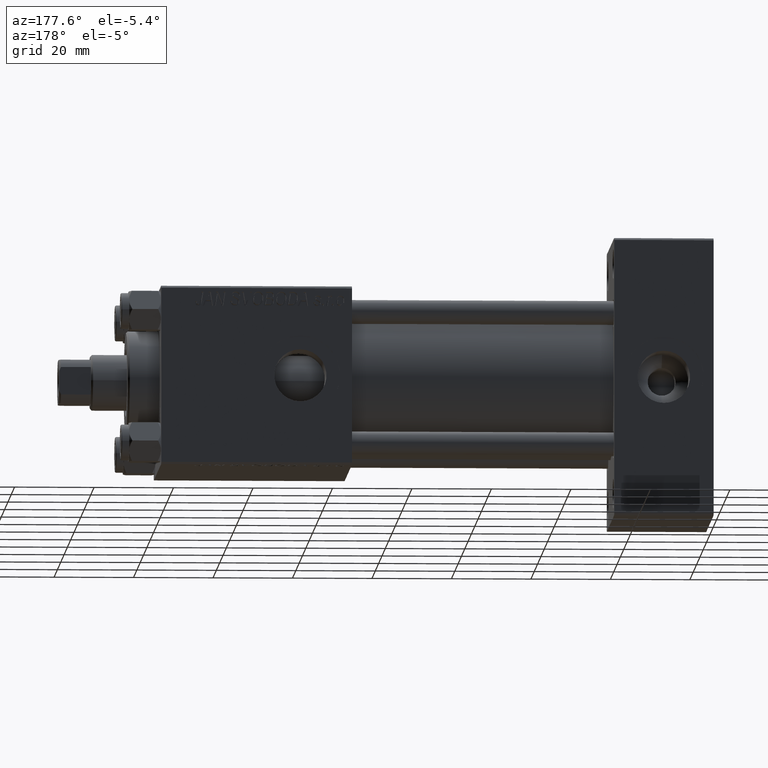
[diagram: clean part render]
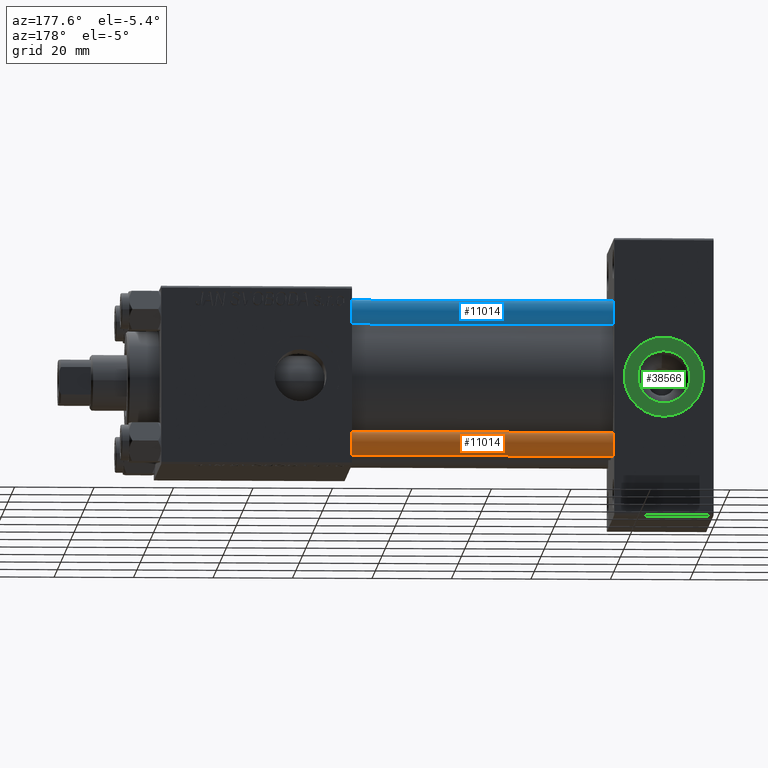
[diagram: same view with three faces highlighted in distinct colors, each labeled with its STEP entity id]
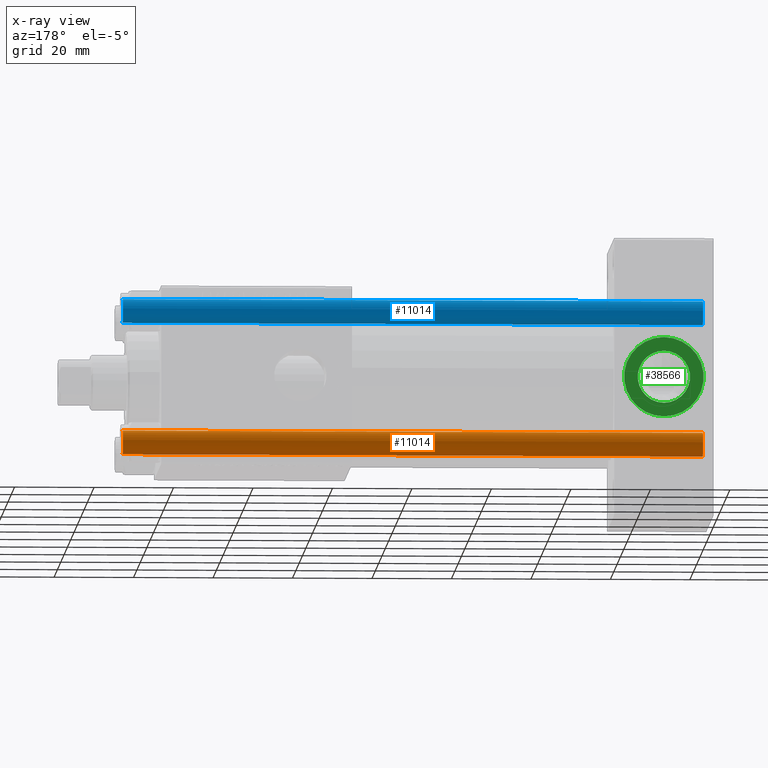
[diagram: x-ray of the same camera — body ghosted, the three highlighted faces saturated]
A machine part, auxiliary view with three faces highlighted in distinct colors.
The next image is the same camera in x-ray (body ghosted, the three faces saturated) — at least one of them is partly hidden behind the body in this view.
Their STEP definitions:

[orange] entity #11014 — the highlighted cylindrical surface (edge-blend (fillet) strip) has radius 3 mm, axis along (-1, 0, 0).
#1415 = EDGE_CURVE ( 'NONE', #31330, #7092, #8902, .T. ) ;
#1560 = AXIS2_PLACEMENT_3D ( 'NONE', #23992, #12131, #35632 ) ;
#1702 = EDGE_LOOP ( 'NONE', ( #4391, #5708, #46701, #10917 ) ) ;
#2775 = CYLINDRICAL_SURFACE ( 'NONE', #28578, 3.000000000000000444 ) ;
#3444 = LINE ( 'NONE', #26411, #47891 ) ;
#4391 = ORIENTED_EDGE ( 'NONE', *, *, #39218, .F. ) ;
#5708 = ORIENTED_EDGE ( 'NONE', *, *, #1415, .T. ) ;
#7092 = VERTEX_POINT ( 'NONE', #34352 ) ;
#8902 = CIRCLE ( 'NONE', #46802, 3.000000000000000444 ) ;
#9545 = EDGE_CURVE ( 'NONE', #7092, #25896, #3444, .T. ) ;
#10917 = ORIENTED_EDGE ( 'NONE', *, *, #35701, .T. ) ;
#11014 = ADVANCED_FACE ( 'NONE', ( #37377 ), #2775, .T. ) ;
#12131 = DIRECTION ( 'NONE',  ( -0.000000000000000000, -0.000000000000000000, 1.000000000000000000 ) ) ;
#12850 = CIRCLE ( 'NONE', #1560, 3.000000000000000444 ) ;
#14386 = CARTESIAN_POINT ( 'NONE',  ( 0.000000000000000000, 0.000000000000000000, 147.0000000000000000 ) ) ;
#14776 = LINE ( 'NONE', #34978, #18608 ) ;
#17554 = CARTESIAN_POINT ( 'NONE',  ( -3.000000000000000444, 0.000000000000000000, 0.5000000000000281997 ) ) ;
#18608 = VECTOR ( 'NONE', #23600, 1000.000000000000000 ) ;
#23600 = DIRECTION ( 'NONE',  ( -0.000000000000000000, -0.000000000000000000, -1.000000000000000000 ) ) ;
#23992 = CARTESIAN_POINT ( 'NONE',  ( 0.000000000000000000, 0.000000000000000000, 0.5000000000000281997 ) ) ;
#24420 = DIRECTION ( 'NONE',  ( 0.000000000000000000, 0.000000000000000000, -1.000000000000000000 ) ) ;
#25896 = VERTEX_POINT ( 'NONE', #17554 ) ;
#26277 = CARTESIAN_POINT ( 'NONE',  ( 3.000000000000000444, 3.673940397442060361E-16, 146.5000000000000000 ) ) ;
#26411 = CARTESIAN_POINT ( 'NONE',  ( -3.000000000000000444, 0.000000000000000000, 147.0000000000000000 ) ) ;
#26667 = DIRECTION ( 'NONE',  ( -0.000000000000000000, -0.000000000000000000, -1.000000000000000000 ) ) ;
#27923 = VERTEX_POINT ( 'NONE', #38796 ) ;
#28578 = AXIS2_PLACEMENT_3D ( 'NONE', #14386, #29791, #45205 ) ;
#29791 = DIRECTION ( 'NONE',  ( -0.000000000000000000, -0.000000000000000000, -1.000000000000000000 ) ) ;
#31330 = VERTEX_POINT ( 'NONE', #26277 ) ;
#34352 = CARTESIAN_POINT ( 'NONE',  ( -3.000000000000000444, 0.000000000000000000, 146.5000000000000000 ) ) ;
#34978 = CARTESIAN_POINT ( 'NONE',  ( 3.000000000000000444, 3.673940397442060361E-16, 147.0000000000000000 ) ) ;
#35632 = DIRECTION ( 'NONE',  ( 1.000000000000000000, 0.000000000000000000, 0.000000000000000000 ) ) ;
#35701 = EDGE_CURVE ( 'NONE', #25896, #27923, #12850, .T. ) ;
#37377 = FACE_OUTER_BOUND ( 'NONE', #1702, .T. ) ;
#38796 = CARTESIAN_POINT ( 'NONE',  ( 3.000000000000000444, 3.673940397442060361E-16, 0.5000000000000281997 ) ) ;
#39218 = EDGE_CURVE ( 'NONE', #31330, #27923, #14776, .T. ) ;
#39838 = DIRECTION ( 'NONE',  ( 1.000000000000000000, 0.000000000000000000, 0.000000000000000000 ) ) ;
#43627 = CARTESIAN_POINT ( 'NONE',  ( 0.000000000000000000, 0.000000000000000000, 146.5000000000000000 ) ) ;
#45205 = DIRECTION ( 'NONE',  ( -1.000000000000000000, 0.000000000000000000, 0.000000000000000000 ) ) ;
#46701 = ORIENTED_EDGE ( 'NONE', *, *, #9545, .T. ) ;
#46802 = AXIS2_PLACEMENT_3D ( 'NONE', #43627, #24420, #39838 ) ;
#47891 = VECTOR ( 'NONE', #26667, 1000.000000000000000 ) ;

[blue] entity #11014 — the highlighted cylindrical surface (edge-blend (fillet) strip) has radius 3 mm, axis along (1, 0, 0).
#1415 = EDGE_CURVE ( 'NONE', #31330, #7092, #8902, .T. ) ;
#1560 = AXIS2_PLACEMENT_3D ( 'NONE', #23992, #12131, #35632 ) ;
#1702 = EDGE_LOOP ( 'NONE', ( #4391, #5708, #46701, #10917 ) ) ;
#2775 = CYLINDRICAL_SURFACE ( 'NONE', #28578, 3.000000000000000444 ) ;
#3444 = LINE ( 'NONE', #26411, #47891 ) ;
#4391 = ORIENTED_EDGE ( 'NONE', *, *, #39218, .F. ) ;
#5708 = ORIENTED_EDGE ( 'NONE', *, *, #1415, .T. ) ;
#7092 = VERTEX_POINT ( 'NONE', #34352 ) ;
#8902 = CIRCLE ( 'NONE', #46802, 3.000000000000000444 ) ;
#9545 = EDGE_CURVE ( 'NONE', #7092, #25896, #3444, .T. ) ;
#10917 = ORIENTED_EDGE ( 'NONE', *, *, #35701, .T. ) ;
#11014 = ADVANCED_FACE ( 'NONE', ( #37377 ), #2775, .T. ) ;
#12131 = DIRECTION ( 'NONE',  ( -0.000000000000000000, -0.000000000000000000, 1.000000000000000000 ) ) ;
#12850 = CIRCLE ( 'NONE', #1560, 3.000000000000000444 ) ;
#14386 = CARTESIAN_POINT ( 'NONE',  ( 0.000000000000000000, 0.000000000000000000, 147.0000000000000000 ) ) ;
#14776 = LINE ( 'NONE', #34978, #18608 ) ;
#17554 = CARTESIAN_POINT ( 'NONE',  ( -3.000000000000000444, 0.000000000000000000, 0.5000000000000281997 ) ) ;
#18608 = VECTOR ( 'NONE', #23600, 1000.000000000000000 ) ;
#23600 = DIRECTION ( 'NONE',  ( -0.000000000000000000, -0.000000000000000000, -1.000000000000000000 ) ) ;
#23992 = CARTESIAN_POINT ( 'NONE',  ( 0.000000000000000000, 0.000000000000000000, 0.5000000000000281997 ) ) ;
#24420 = DIRECTION ( 'NONE',  ( 0.000000000000000000, 0.000000000000000000, -1.000000000000000000 ) ) ;
#25896 = VERTEX_POINT ( 'NONE', #17554 ) ;
#26277 = CARTESIAN_POINT ( 'NONE',  ( 3.000000000000000444, 3.673940397442060361E-16, 146.5000000000000000 ) ) ;
#26411 = CARTESIAN_POINT ( 'NONE',  ( -3.000000000000000444, 0.000000000000000000, 147.0000000000000000 ) ) ;
#26667 = DIRECTION ( 'NONE',  ( -0.000000000000000000, -0.000000000000000000, -1.000000000000000000 ) ) ;
#27923 = VERTEX_POINT ( 'NONE', #38796 ) ;
#28578 = AXIS2_PLACEMENT_3D ( 'NONE', #14386, #29791, #45205 ) ;
#29791 = DIRECTION ( 'NONE',  ( -0.000000000000000000, -0.000000000000000000, -1.000000000000000000 ) ) ;
#31330 = VERTEX_POINT ( 'NONE', #26277 ) ;
#34352 = CARTESIAN_POINT ( 'NONE',  ( -3.000000000000000444, 0.000000000000000000, 146.5000000000000000 ) ) ;
#34978 = CARTESIAN_POINT ( 'NONE',  ( 3.000000000000000444, 3.673940397442060361E-16, 147.0000000000000000 ) ) ;
#35632 = DIRECTION ( 'NONE',  ( 1.000000000000000000, 0.000000000000000000, 0.000000000000000000 ) ) ;
#35701 = EDGE_CURVE ( 'NONE', #25896, #27923, #12850, .T. ) ;
#37377 = FACE_OUTER_BOUND ( 'NONE', #1702, .T. ) ;
#38796 = CARTESIAN_POINT ( 'NONE',  ( 3.000000000000000444, 3.673940397442060361E-16, 0.5000000000000281997 ) ) ;
#39218 = EDGE_CURVE ( 'NONE', #31330, #27923, #14776, .T. ) ;
#39838 = DIRECTION ( 'NONE',  ( 1.000000000000000000, 0.000000000000000000, 0.000000000000000000 ) ) ;
#43627 = CARTESIAN_POINT ( 'NONE',  ( 0.000000000000000000, 0.000000000000000000, 146.5000000000000000 ) ) ;
#45205 = DIRECTION ( 'NONE',  ( -1.000000000000000000, 0.000000000000000000, 0.000000000000000000 ) ) ;
#46701 = ORIENTED_EDGE ( 'NONE', *, *, #9545, .T. ) ;
#46802 = AXIS2_PLACEMENT_3D ( 'NONE', #43627, #24420, #39838 ) ;
#47891 = VECTOR ( 'NONE', #26667, 1000.000000000000000 ) ;

[green] entity #38566 — the highlighted planar face has unit normal (0, 1, 0).
#285 = CARTESIAN_POINT ( 'NONE',  ( 12.50000000000000000, 22.30000000000000426, 0.000000000000000000 ) ) ;
#1602 = FACE_BOUND ( 'NONE', #47119, .T. ) ;
#2411 = CARTESIAN_POINT ( 'NONE',  ( 12.50000000000000000, 22.30000000000000426, 0.000000000000000000 ) ) ;
#3660 = AXIS2_PLACEMENT_3D ( 'NONE', #43078, #30271, #39538 ) ;
#3853 = ORIENTED_EDGE ( 'NONE', *, *, #33401, .T. ) ;
#4669 = VERTEX_POINT ( 'NONE', #39580 ) ;
#4745 = AXIS2_PLACEMENT_3D ( 'NONE', #24590, #36483, #39765 ) ;
#10321 = ORIENTED_EDGE ( 'NONE', *, *, #17637, .T. ) ;
#10528 = AXIS2_PLACEMENT_3D ( 'NONE', #37947, #18753, #10666 ) ;
#10666 = DIRECTION ( 'NONE',  ( 0.000000000000000000, -0.000000000000000000, 1.000000000000000000 ) ) ;
#12546 = EDGE_LOOP ( 'NONE', ( #10321, #3853 ) ) ;
#13718 = PLANE ( 'NONE',  #10528 ) ;
#15676 = CARTESIAN_POINT ( 'NONE',  ( 12.50000000000000000, 22.30000000000000426, 9.999999999999996447 ) ) ;
#16818 = CIRCLE ( 'NONE', #4745, 6.579999999999998295 ) ;
#17637 = EDGE_CURVE ( 'NONE', #46277, #47297, #27018, .T. ) ;
#17819 = DIRECTION ( 'NONE',  ( 0.000000000000000000, 1.000000000000000000, 0.000000000000000000 ) ) ;
#18492 = FACE_OUTER_BOUND ( 'NONE', #12546, .T. ) ;
#18753 = DIRECTION ( 'NONE',  ( 0.000000000000000000, 1.000000000000000000, 0.000000000000000000 ) ) ;
#18793 = EDGE_CURVE ( 'NONE', #31297, #4669, #31805, .T. ) ;
#19223 = CIRCLE ( 'NONE', #35396, 9.999999999999996447 ) ;
#19740 = DIRECTION ( 'NONE',  ( 0.000000000000000000, 1.000000000000000000, 0.000000000000000000 ) ) ;
#23389 = ORIENTED_EDGE ( 'NONE', *, *, #29656, .F. ) ;
#24590 = CARTESIAN_POINT ( 'NONE',  ( 12.50000000000000000, 22.30000000000000426, 0.000000000000000000 ) ) ;
#27018 = CIRCLE ( 'NONE', #37506, 9.999999999999996447 ) ;
#29656 = EDGE_CURVE ( 'NONE', #4669, #31297, #16818, .T. ) ;
#30271 = DIRECTION ( 'NONE',  ( 0.000000000000000000, 1.000000000000000000, 0.000000000000000000 ) ) ;
#31297 = VERTEX_POINT ( 'NONE', #37900 ) ;
#31805 = CIRCLE ( 'NONE', #3660, 6.579999999999998295 ) ;
#33241 = DIRECTION ( 'NONE',  ( 0.000000000000000000, 0.000000000000000000, 1.000000000000000000 ) ) ;
#33401 = EDGE_CURVE ( 'NONE', #47297, #46277, #19223, .T. ) ;
#34069 = CARTESIAN_POINT ( 'NONE',  ( 12.50000000000000178, 22.30000000000000426, -9.999999999999996447 ) ) ;
#35396 = AXIS2_PLACEMENT_3D ( 'NONE', #2411, #17819, #33241 ) ;
#35669 = DIRECTION ( 'NONE',  ( 0.000000000000000000, 0.000000000000000000, 1.000000000000000000 ) ) ;
#36483 = DIRECTION ( 'NONE',  ( 0.000000000000000000, 1.000000000000000000, 0.000000000000000000 ) ) ;
#37506 = AXIS2_PLACEMENT_3D ( 'NONE', #285, #19740, #35669 ) ;
#37900 = CARTESIAN_POINT ( 'NONE',  ( 12.50000000000000000, 22.30000000000000426, 6.579999999999998295 ) ) ;
#37947 = CARTESIAN_POINT ( 'NONE',  ( 12.50000000000000000, 22.30000000000000426, 0.000000000000000000 ) ) ;
#38566 = ADVANCED_FACE ( 'NONE', ( #1602, #18492 ), #13718, .T. ) ;
#39538 = DIRECTION ( 'NONE',  ( 0.000000000000000000, 0.000000000000000000, 1.000000000000000000 ) ) ;
#39580 = CARTESIAN_POINT ( 'NONE',  ( 12.50000000000000000, 22.30000000000000426, -6.579999999999998295 ) ) ;
#39765 = DIRECTION ( 'NONE',  ( 0.000000000000000000, 0.000000000000000000, 1.000000000000000000 ) ) ;
#43078 = CARTESIAN_POINT ( 'NONE',  ( 12.50000000000000000, 22.30000000000000426, 0.000000000000000000 ) ) ;
#43262 = ORIENTED_EDGE ( 'NONE', *, *, #18793, .F. ) ;
#46277 = VERTEX_POINT ( 'NONE', #15676 ) ;
#47119 = EDGE_LOOP ( 'NONE', ( #43262, #23389 ) ) ;
#47297 = VERTEX_POINT ( 'NONE', #34069 ) ;